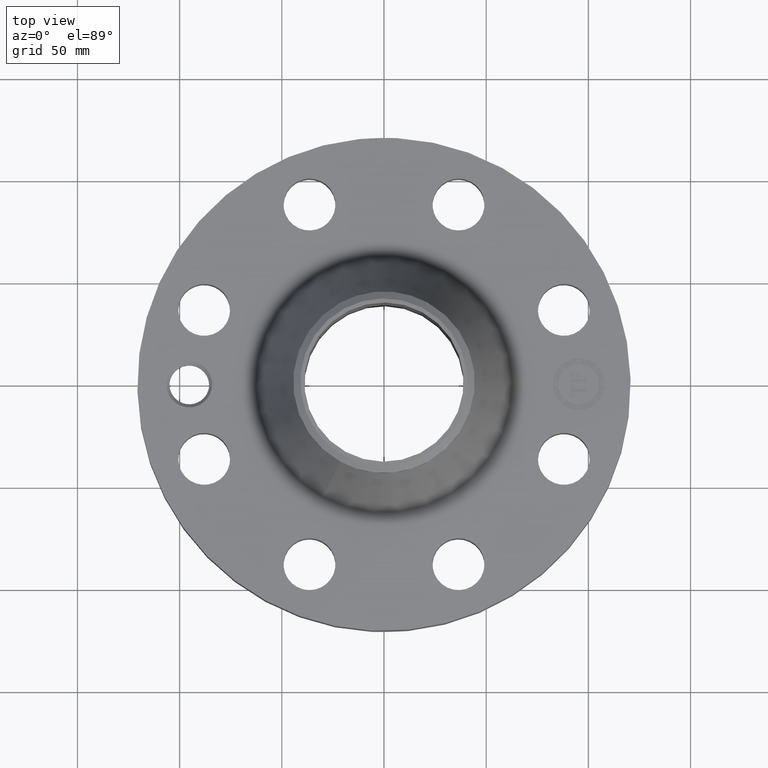
[diagram: clean part render]
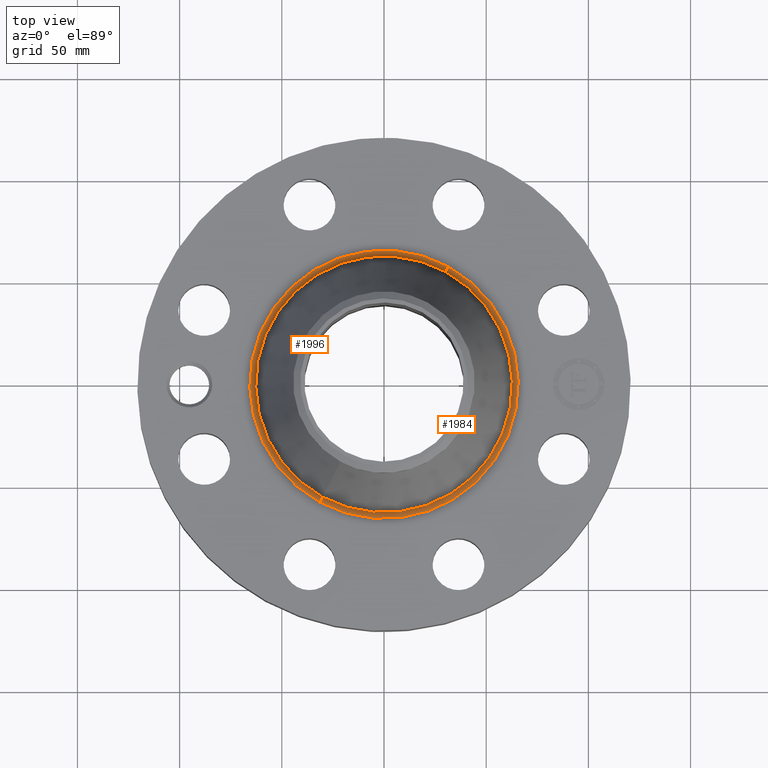
[diagram: same view with one multi-face feature highlighted, each face labeled with its STEP entity id]
A machine part, top view. The highlighted faces form ONE feature: a constant-radius fillet chain: 2 tangent blend faces with common blend radius 3.048 mm. The faces share edges in the B-rep.
Their STEP definitions:
[1] entity #1996 (Torus):
#535=AXIS2_PLACEMENT_3D('Circle Axis2P3D',#533,#534,$) ;
#1957=AXIS2_PLACEMENT_3D('Torus Axis2P3D',#1954,#1955,#1956) ;
#1961=AXIS2_PLACEMENT_3D('Circle Axis2P3D',#1959,#1960,$) ;
#1975=AXIS2_PLACEMENT_3D('Circle Axis2P3D',#1973,#1974,$) ;
#1987=AXIS2_PLACEMENT_3D('Circle Axis2P3D',#1985,#1986,$) ;
#533=CARTESIAN_POINT('Axis2P3D Location',(0.,0.,1.75000000001)) ;
#537=CARTESIAN_POINT('Vertex',(-1.23947864791,-2.26885044632,1.75000000001)) ;
#539=CARTESIAN_POINT('Vertex',(1.23947864791,2.26885044632,1.75000000001)) ;
#1954=CARTESIAN_POINT('Axis2P3D Location',(0.,0.,1.87000000001)) ;
#1959=CARTESIAN_POINT('Axis2P3D Location',(1.23947864791,2.26885044632,1.87000000001)) ;
#1963=CARTESIAN_POINT('Vertex',(1.18513474915,2.16937460689,1.830613479)) ;
#1970=CARTESIAN_POINT('Vertex',(-1.18513474915,-2.16937460689,1.830613479)) ;
#1973=CARTESIAN_POINT('Axis2P3D Location',(-1.23947864791,-2.26885044632,1.87000000001)) ;
#1985=CARTESIAN_POINT('Axis2P3D Location',(0.,0.,1.830613479)) ;
#534=DIRECTION('Axis2P3D Direction',(0.,0.,-0.0393700787402)) ;
#1955=DIRECTION('Axis2P3D Direction',(0.,0.,-0.0393700787402)) ;
#1956=DIRECTION('Axis2P3D XDirection',(-0.0188750212049,-0.0345504945626,0.)) ;
#1960=DIRECTION('Axis2P3D Direction',(-0.0345504945626,0.0188750212049,0.)) ;
#1974=DIRECTION('Axis2P3D Direction',(0.0345504945626,-0.0188750212049,0.)) ;
#1986=DIRECTION('Axis2P3D Direction',(0.,0.,-0.0393700787402)) ;
#1991=ORIENTED_EDGE('',*,*,#541,.F.) ;
#1992=ORIENTED_EDGE('',*,*,#1977,.T.) ;
#1993=ORIENTED_EDGE('',*,*,#1989,.T.) ;
#1994=ORIENTED_EDGE('',*,*,#1965,.F.) ;
#1996=ADVANCED_FACE('PartBody',(#1995),#1958,.F.) ;
#536=CIRCLE('generated circle',#535,2.58534130559) ;
#1962=CIRCLE('generated circle',#1961,0.12) ;
#1976=CIRCLE('generated circle',#1975,0.12) ;
#1988=CIRCLE('generated circle',#1987,2.47198919064) ;
#1958=TOROIDAL_SURFACE('homeo Torus',#1957,2.58534130559,0.12) ;
#541=EDGE_CURVE('',#538,#540,#536,.T.) ;
#1965=EDGE_CURVE('',#540,#1964,#1962,.T.) ;
#1977=EDGE_CURVE('',#538,#1971,#1976,.T.) ;
#1989=EDGE_CURVE('',#1971,#1964,#1988,.T.) ;
#1990=EDGE_LOOP('',(#1991,#1992,#1993,#1994)) ;
#1995=FACE_OUTER_BOUND('',#1990,.T.) ;
#538=VERTEX_POINT('',#537) ;
#540=VERTEX_POINT('',#539) ;
#1964=VERTEX_POINT('',#1963) ;
#1971=VERTEX_POINT('',#1970) ;
[2] entity #1984 (Torus):
#544=AXIS2_PLACEMENT_3D('Circle Axis2P3D',#542,#543,$) ;
#1957=AXIS2_PLACEMENT_3D('Torus Axis2P3D',#1954,#1955,#1956) ;
#1961=AXIS2_PLACEMENT_3D('Circle Axis2P3D',#1959,#1960,$) ;
#1968=AXIS2_PLACEMENT_3D('Circle Axis2P3D',#1966,#1967,$) ;
#1975=AXIS2_PLACEMENT_3D('Circle Axis2P3D',#1973,#1974,$) ;
#537=CARTESIAN_POINT('Vertex',(-1.23947864791,-2.26885044632,1.75000000001)) ;
#539=CARTESIAN_POINT('Vertex',(1.23947864791,2.26885044632,1.75000000001)) ;
#542=CARTESIAN_POINT('Axis2P3D Location',(0.,0.,1.75000000001)) ;
#1954=CARTESIAN_POINT('Axis2P3D Location',(0.,0.,1.87000000001)) ;
#1959=CARTESIAN_POINT('Axis2P3D Location',(1.23947864791,2.26885044632,1.87000000001)) ;
#1963=CARTESIAN_POINT('Vertex',(1.18513474915,2.16937460689,1.830613479)) ;
#1966=CARTESIAN_POINT('Axis2P3D Location',(0.,0.,1.830613479)) ;
#1970=CARTESIAN_POINT('Vertex',(-1.18513474915,-2.16937460689,1.830613479)) ;
#1973=CARTESIAN_POINT('Axis2P3D Location',(-1.23947864791,-2.26885044632,1.87000000001)) ;
#543=DIRECTION('Axis2P3D Direction',(0.,0.,-0.0393700787402)) ;
#1955=DIRECTION('Axis2P3D Direction',(0.,0.,-0.0393700787402)) ;
#1956=DIRECTION('Axis2P3D XDirection',(-0.0188750212049,-0.0345504945626,0.)) ;
#1960=DIRECTION('Axis2P3D Direction',(-0.0345504945626,0.0188750212049,0.)) ;
#1967=DIRECTION('Axis2P3D Direction',(0.,0.,-0.0393700787402)) ;
#1974=DIRECTION('Axis2P3D Direction',(0.0345504945626,-0.0188750212049,0.)) ;
#1979=ORIENTED_EDGE('',*,*,#546,.F.) ;
#1980=ORIENTED_EDGE('',*,*,#1965,.T.) ;
#1981=ORIENTED_EDGE('',*,*,#1972,.T.) ;
#1982=ORIENTED_EDGE('',*,*,#1977,.F.) ;
#1984=ADVANCED_FACE('PartBody',(#1983),#1958,.F.) ;
#545=CIRCLE('generated circle',#544,2.58534130559) ;
#1962=CIRCLE('generated circle',#1961,0.12) ;
#1969=CIRCLE('generated circle',#1968,2.47198919064) ;
#1976=CIRCLE('generated circle',#1975,0.12) ;
#1958=TOROIDAL_SURFACE('homeo Torus',#1957,2.58534130559,0.12) ;
#546=EDGE_CURVE('',#540,#538,#545,.T.) ;
#1965=EDGE_CURVE('',#540,#1964,#1962,.T.) ;
#1972=EDGE_CURVE('',#1964,#1971,#1969,.T.) ;
#1977=EDGE_CURVE('',#538,#1971,#1976,.T.) ;
#1978=EDGE_LOOP('',(#1979,#1980,#1981,#1982)) ;
#1983=FACE_OUTER_BOUND('',#1978,.T.) ;
#538=VERTEX_POINT('',#537) ;
#540=VERTEX_POINT('',#539) ;
#1964=VERTEX_POINT('',#1963) ;
#1971=VERTEX_POINT('',#1970) ;